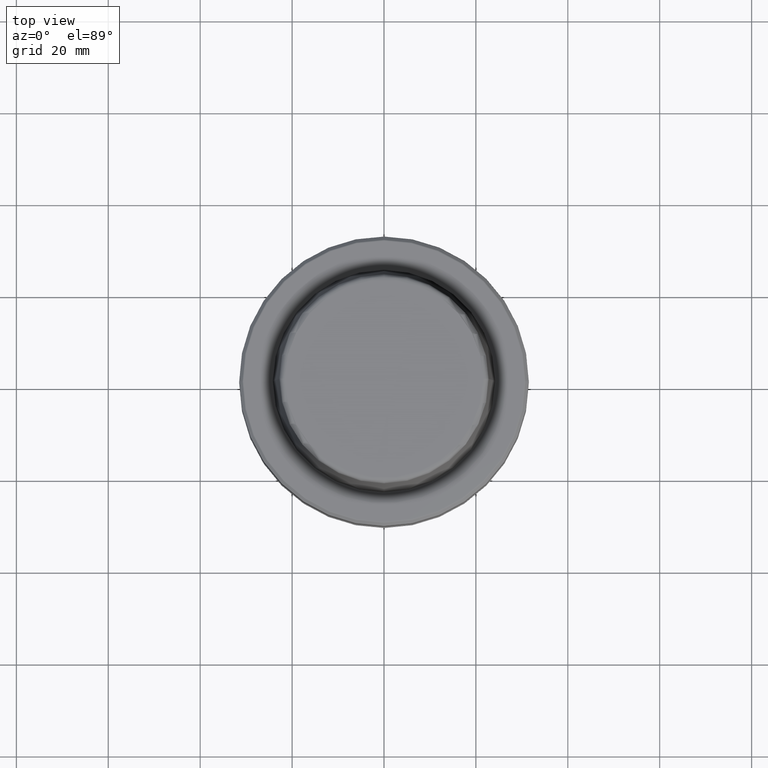
[diagram: clean part render]
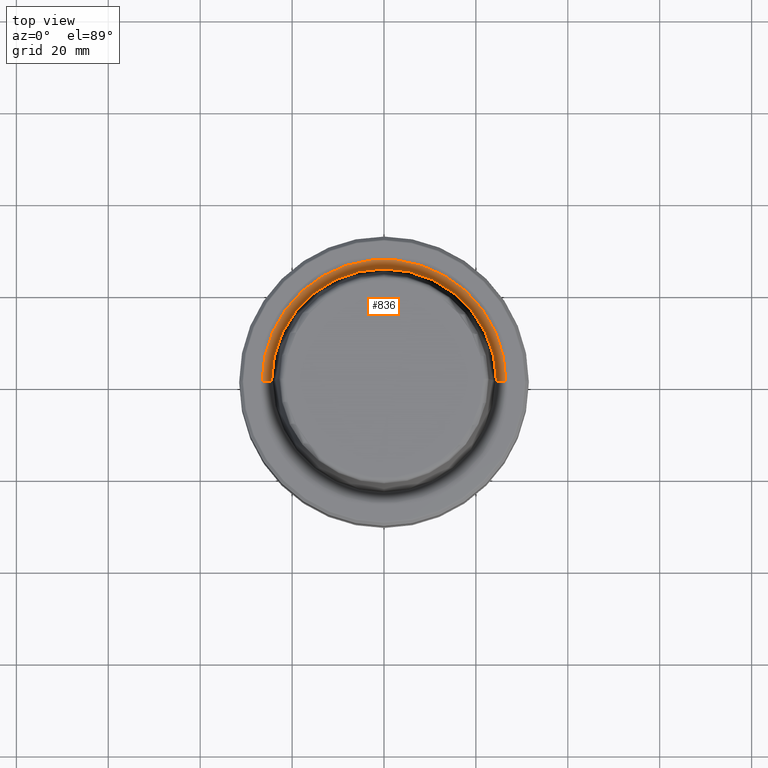
[diagram: same view with one face highlighted and labeled with its STEP entity id]
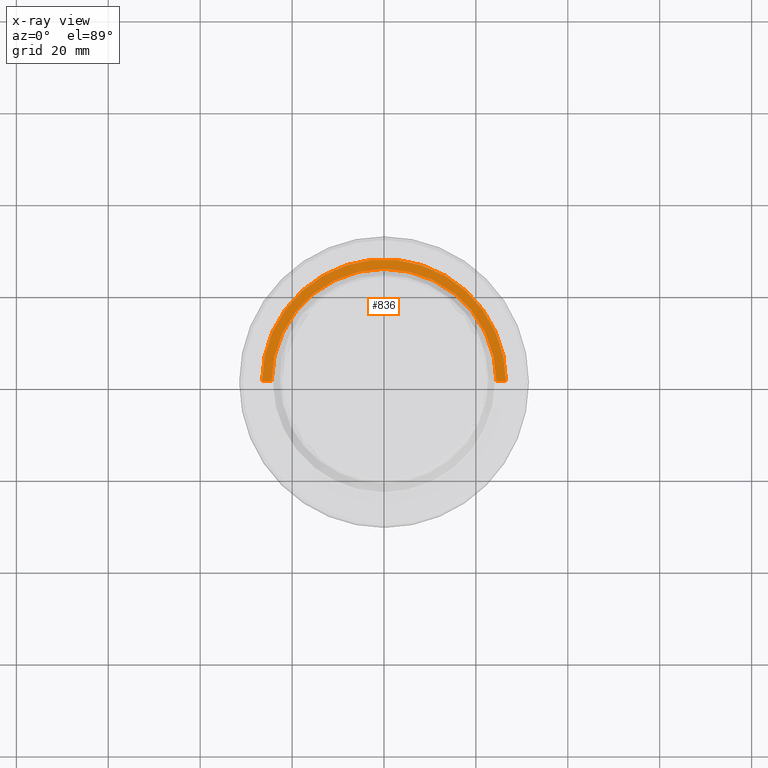
[diagram: x-ray of the same camera — body ghosted, the highlighted face saturated]
A machine part, top view. The second image highlights one B-rep face of the part: STEP entity #836.
The next image is the same camera in x-ray: the body ghosted, the highlighted face saturated — about 0% of this face is hidden behind the body in this view.
In plain terms, the highlighted conical surface has half-angle 80 deg.
Its self-contained STEP definition (entity closure, byte-faithful):
#26 = VERTEX_POINT ( 'NONE', #1219 ) ;
#31 = CARTESIAN_POINT ( 'NONE',  ( 0.0000000000000000000, 0.0000000000000000000, 0.0000000000000000000 ) ) ;
#69 = ORIENTED_EDGE ( 'NONE', *, *, #922, .T. ) ;
#172 = EDGE_CURVE ( 'NONE', #941, #26, #654, .T. ) ;
#277 = DIRECTION ( 'NONE',  ( -0.0000000000000000000, -0.0000000000000000000, 1.000000000000000000 ) ) ;
#402 = CARTESIAN_POINT ( 'NONE',  ( -26.52499999999999900, 3.248375634738354300E-015, 0.0000000000000000000 ) ) ;
#435 = DIRECTION ( 'NONE',  ( 1.000000000000000000, 0.0000000000000000000, 0.0000000000000000000 ) ) ;
#456 = DIRECTION ( 'NONE',  ( -0.9848077530122074700, 1.206041662501897100E-016, 0.1736481776669334700 ) ) ;
#472 = CARTESIAN_POINT ( 'NONE',  ( 26.52499999999999900, 0.0000000000000000000, 0.0000000000000000000 ) ) ;
#476 = CARTESIAN_POINT ( 'NONE',  ( 24.47682408883346700, 0.0000000000000000000, -0.3611486743758107700 ) ) ;
#516 = ORIENTED_EDGE ( 'NONE', *, *, #172, .F. ) ;
#554 = AXIS2_PLACEMENT_3D ( 'NONE', #1208, #1049, #1010 ) ;
#563 = FACE_OUTER_BOUND ( 'NONE', #1004, .T. ) ;
#567 = VERTEX_POINT ( 'NONE', #476 ) ;
#601 = AXIS2_PLACEMENT_3D ( 'NONE', #957, #277, #1065 ) ;
#641 = ORIENTED_EDGE ( 'NONE', *, *, #711, .T. ) ;
#654 = LINE ( 'NONE', #402, #1003 ) ;
#711 = EDGE_CURVE ( 'NONE', #567, #1028, #915, .T. ) ;
#733 = CIRCLE ( 'NONE', #780, 26.52499999999999900 ) ;
#739 = EDGE_CURVE ( 'NONE', #567, #941, #1173, .T. ) ;
#780 = AXIS2_PLACEMENT_3D ( 'NONE', #31, #1096, #435 ) ;
#825 = CARTESIAN_POINT ( 'NONE',  ( -24.47682408883346700, 3.122961031053313900E-015, -0.3611486743758107700 ) ) ;
#836 = ADVANCED_FACE ( 'NONE', ( #563 ), #1044, .F. ) ;
#915 = LINE ( 'NONE', #1187, #1260 ) ;
#922 = EDGE_CURVE ( 'NONE', #1028, #26, #733, .T. ) ;
#941 = VERTEX_POINT ( 'NONE', #825 ) ;
#957 = CARTESIAN_POINT ( 'NONE',  ( 0.0000000000000000000, 0.0000000000000000000, -0.3611486743758107700 ) ) ;
#1003 = VECTOR ( 'NONE', #456, 1000.000000000000200 ) ;
#1004 = EDGE_LOOP ( 'NONE', ( #516, #1015, #641, #69 ) ) ;
#1010 = DIRECTION ( 'NONE',  ( 1.000000000000000000, 0.0000000000000000000, 0.0000000000000000000 ) ) ;
#1015 = ORIENTED_EDGE ( 'NONE', *, *, #739, .F. ) ;
#1028 = VERTEX_POINT ( 'NONE', #472 ) ;
#1044 = CONICAL_SURFACE ( 'NONE', #554, 26.52499999999999900, 1.396263401595460500 ) ;
#1049 = DIRECTION ( 'NONE',  ( -0.0000000000000000000, -0.0000000000000000000, 1.000000000000000000 ) ) ;
#1055 = DIRECTION ( 'NONE',  ( 0.9848077530122074700, 0.0000000000000000000, 0.1736481776669334700 ) ) ;
#1065 = DIRECTION ( 'NONE',  ( 1.000000000000000000, 0.0000000000000000000, 0.0000000000000000000 ) ) ;
#1096 = DIRECTION ( 'NONE',  ( -0.0000000000000000000, -0.0000000000000000000, 1.000000000000000000 ) ) ;
#1173 = CIRCLE ( 'NONE', #601, 24.47682408883346700 ) ;
#1187 = CARTESIAN_POINT ( 'NONE',  ( 26.52499999999999900, 0.0000000000000000000, 0.0000000000000000000 ) ) ;
#1208 = CARTESIAN_POINT ( 'NONE',  ( 0.0000000000000000000, 0.0000000000000000000, 0.0000000000000000000 ) ) ;
#1219 = CARTESIAN_POINT ( 'NONE',  ( -26.52499999999999900, 3.248375634738354300E-015, 0.0000000000000000000 ) ) ;
#1260 = VECTOR ( 'NONE', #1055, 1000.000000000000200 ) ;